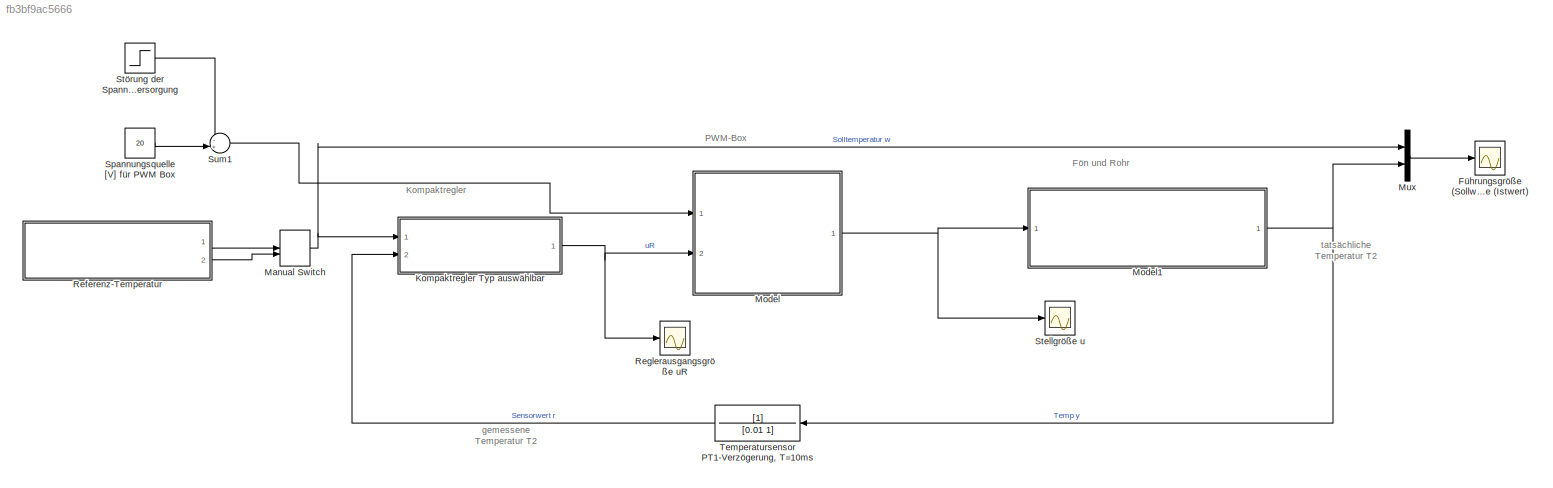
MODEL slx_fb3bf9ac5666
KIND model
CONFIG AbsTol = auto
CONFIG EnableMultiTasking = on
CONFIG FixedStep = 0.01
CONFIG MaxStep = auto
CONFIG MinStep = auto
CONFIG RelTol = 1e-3
CONFIG SampleTimeConstraint = Unconstrained
CONFIG Solver = VariableStepAuto
CONFIG SolverName = VariableStepAuto
CONFIG StartTime = 0.0
CONFIG StopTime = 500
BLOCK [Scope] Führungsgröße (Sollwert) Regelgröße (Istwert) 
  Floating = off
  NumInputPorts = 1
  Ports = [1]
  ScopeSpecificationString = Simulink.scopes.TimeScopeBlockCfg('CurrentConfiguration', extmgr.ConfigurationSet(extmgr.Configuration('Core','General UI',true,'FigureColor',[0.501960784313725 0.501960784313725 0.501960784313725]),extmgr.Configuration('Core','Source UI',true),extmgr.Configuration('Sources','WiredSimulink',true,'DataLoggingSaveFormat','StructureWithTime','DataLoggingDecimation','1','DataLoggingDecimateData',true)...<+2850ch>
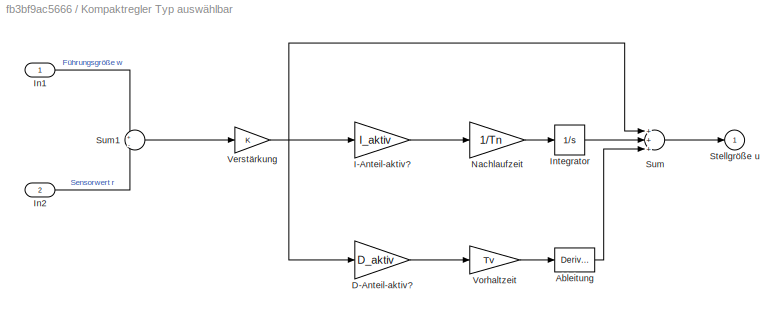
BLOCK [SubSystem] Kompaktregler Typ auswählbar 
  Ports = [2, 1]
  RequestExecContextInheritance = off
  ShowPortLabels = SignalName
BLOCK [Derivative] Kompaktregler Typ auswählbar /Ableitung
  CoefficientInTFapproximation = 0.01
BLOCK [Gain] Kompaktregler Typ auswählbar /D-Anteil-aktiv? 
  Gain = D_aktiv
BLOCK [Gain] Kompaktregler Typ auswählbar /I-Anteil-aktiv? 
  Gain = I_aktiv
BLOCK [Inport] Kompaktregler Typ auswählbar /In1
  IconDisplay = Port number
BLOCK [Inport] Kompaktregler Typ auswählbar /In2
  IconDisplay = Port number
  Port = 2
BLOCK [Integrator] Kompaktregler Typ auswählbar /Integrator
  LimitOutput = on
  LowerSaturationLimit = -1
  Ports = [1, 1]
  UpperSaturationLimit = 1
BLOCK [Gain] Kompaktregler Typ auswählbar /Nachlaufzeit
  Gain = 1/Tn
BLOCK [Outport] Kompaktregler Typ auswählbar /Stellgröße u
  IconDisplay = Port number
  InitialOutput = 0
BLOCK [Sum] Kompaktregler Typ auswählbar /Sum
  Inputs = +++
  Ports = [3, 1]
BLOCK [Sum] Kompaktregler Typ auswählbar /Sum1
  IconShape = round
  InputSameDT = off
  Inputs = +|-
  OutDataTypeStr = Inherit: Inherit via internal rule
  Ports = [2, 1]
  SaturateOnIntegerOverflow = off
BLOCK [Gain] Kompaktregler Typ auswählbar /Verstärkung
  Gain = K
BLOCK [Gain] Kompaktregler Typ auswählbar /Vorhaltzeit
  Gain = Tv
BLOCK [ManualSwitch] Manual Switch
BLOCK [ModelReference] Model
  CopyOfModelProtected = on
  ModelNameDialog = RTP_V1_Corona_PWM_Box.slxp
  ModelReferenceVersion = 1.152
  Ports = [2, 1]
BLOCK [ModelReference] Model1
  CopyOfModelProtected = on
  ModelNameDialog = RTP_V1_Corona_Regelstrecke.slxp
  ModelReferenceVersion = 1.152
  Ports = [1, 1]
BLOCK [Mux] Mux
  DisplayOption = bar
  Inputs = 2
  Ports = [2, 1]
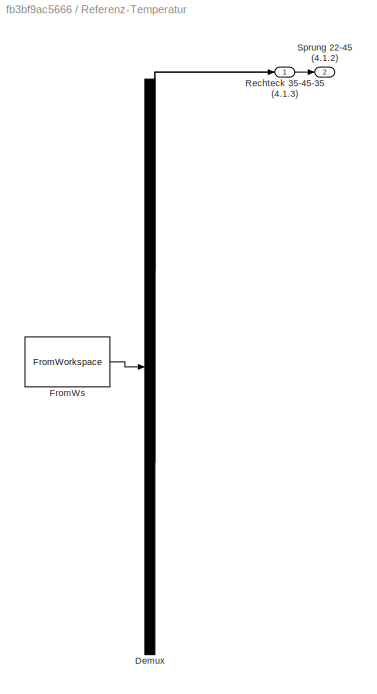
BLOCK [SubSystem] Referenz-Temperatur
  ClipboardFcn = sigbuilder_block('clipboard');
  CloseFcn = sigbuilder_block('close');
  ContinueFcn = sigbuilder_block('continue');
  CopyFcn = sigbuilder_block('copy');
  DeleteFcn = sigbuilder_block('delete');
  LoadFcn = sigbuilder_block('load');
  MaskHideContents = on
  ModelCloseFcn = sigbuilder_block('modelClose');
  NameChangeFcn = sigbuilder_block('namechange');
  OpenFcn = sigbuilder_block('open',[152.25 106.5 550.5 505.5 ]);
  PauseFcn = sigbuilder_block('pause');
  Ports = [0, 2]
  PreSaveFcn = sigbuilder_block('preSave');
  RequestExecContextInheritance = off
  StartFcn = sigbuilder_block('start');
  StopFcn = sigbuilder_block('stop');
  Tag = STV Subsys
BLOCK [Demux] Referenz-Temperatur/Demux
  Outputs = 2
  Ports = [1, 2]
  Tag = STV Demux
BLOCK [FromWorkspace] Referenz-Temperatur/FromWs
  SampleTime = 0
  Tag = STV FromWs
  VariableName = tuvar
  ZeroCross = on
BLOCK [Outport] Referenz-Temperatur/Rechteck 35-45-35 (4.1.3)
  IconDisplay = Port number
  Tag = STV Outport
BLOCK [Outport] Referenz-Temperatur/Sprung 22-45 (4.1.2)
  IconDisplay = Port number
  Port = 2
  Tag = STV Outport
BLOCK [Scope] Reglerausgangsgröße uR
  Floating = off
  NumInputPorts = 1
  Ports = [1]
  ScopeSpecificationString = Simulink.scopes.TimeScopeBlockCfg('CurrentConfiguration', extmgr.ConfigurationSet(extmgr.Configuration('Core','General UI',true,'FigureColor',[0.501960784313725 0.501960784313725 0.501960784313725]),extmgr.Configuration('Core','Source UI',true),extmgr.Configuration('Sources','WiredSimulink',true,'DataLoggingSaveFormat','StructureWithTime','DataLoggingDecimation','1','DataLoggingDecimateData',true,...<+2859ch>
BLOCK [Constant] Spannungsquelle [V] für PWM Box
  Value = 20
BLOCK [Scope] Stellgröße u
  Floating = off
  NumInputPorts = 1
  Ports = [1]
  ScopeSpecificationString = Simulink.scopes.TimeScopeBlockCfg('CurrentConfiguration', extmgr.ConfigurationSet(extmgr.Configuration('Core','General UI',true,'FigureColor',[0.501960784313725 0.501960784313725 0.501960784313725]),extmgr.Configuration('Core','Source UI',true),extmgr.Configuration('Sources','WiredSimulink',true,'DataLoggingSaveFormat','StructureWithTime','DataLoggingDecimation','1','DataLoggingDecimateData',true,...<+2866ch>
BLOCK [Step] Störung der Spannungsversorgung
  After = 3
  Commented = on
  SampleTime = 0
  Time = 250
BLOCK [Sum] Sum1
  IconShape = round
  InputSameDT = off
  Inputs = -+|
  OutDataTypeStr = Inherit: Inherit via internal rule
  Ports = [2, 1]
  SaturateOnIntegerOverflow = off
BLOCK [TransferFcn] Temperatursensor PT1-Verzögerung, T=10ms
  Denominator = [0.01 1]
ANNOTATION (root): Kompaktregler
ANNOTATION (root): PWM-Box
ANNOTATION (root): gemessene Temperatur T2
ANNOTATION (root): tatsächliche Temperatur T2
ANNOTATION (root): Fön und Rohr
LINE Kompaktregler Typ auswählbar /Ableitung:1 -> Kompaktregler Typ auswählbar /Sum:3
LINE Kompaktregler Typ auswählbar /D-Anteil-aktiv? :1 -> Kompaktregler Typ auswählbar /Vorhaltzeit:1
LINE Kompaktregler Typ auswählbar /I-Anteil-aktiv? :1 -> Kompaktregler Typ auswählbar /Nachlaufzeit:1
LINE Kompaktregler Typ auswählbar /In1:1 -> Kompaktregler Typ auswählbar /Sum1:1
LINE Kompaktregler Typ auswählbar /In2:1 -> Kompaktregler Typ auswählbar /Sum1:2
LINE Kompaktregler Typ auswählbar /Integrator:1 -> Kompaktregler Typ auswählbar /Sum:2
LINE Kompaktregler Typ auswählbar /Nachlaufzeit:1 -> Kompaktregler Typ auswählbar /Integrator:1
LINE Kompaktregler Typ auswählbar /Sum1:1 -> Kompaktregler Typ auswählbar /Verstärkung:1
LINE Kompaktregler Typ auswählbar /Sum:1 -> Kompaktregler Typ auswählbar /Stellgröße u:1
NET Kompaktregler Typ auswählbar /Verstärkung:1 -> Kompaktregler Typ auswählbar /D-Anteil-aktiv? :1, Kompaktregler Typ auswählbar /I-Anteil-aktiv? :1, Kompaktregler Typ auswählbar /Sum:1
LINE Kompaktregler Typ auswählbar /Vorhaltzeit:1 -> Kompaktregler Typ auswählbar /Ableitung:1
NET Kompaktregler Typ auswählbar :1 -> Model:2, Reglerausgangsgröße uR:1
NET Manual Switch:1 -> Kompaktregler Typ auswählbar :1, Mux:1
NET Model1:1 -> Mux:2, Temperatursensor PT1-Verzögerung, T=10ms:1
NET Model:1 -> Model1:1, Stellgröße u:1
LINE Mux:1 -> Führungsgröße (Sollwert) Regelgröße (Istwert) :1
LINE Referenz-Temperatur:1 -> Manual Switch:1
LINE Referenz-Temperatur:2 -> Manual Switch:2
LINE Spannungsquelle [V] für PWM Box:1 -> Sum1:2
LINE Störung der Spannungsversorgung:1 -> Sum1:1
LINE Sum1:1 -> Model:1
LINE Temperatursensor PT1-Verzögerung, T=10ms:1 -> Kompaktregler Typ auswählbar :2
note: NET lines group one-source signal fan-out (src -> all destinations, sorted); 1:1 wires keep LINE
